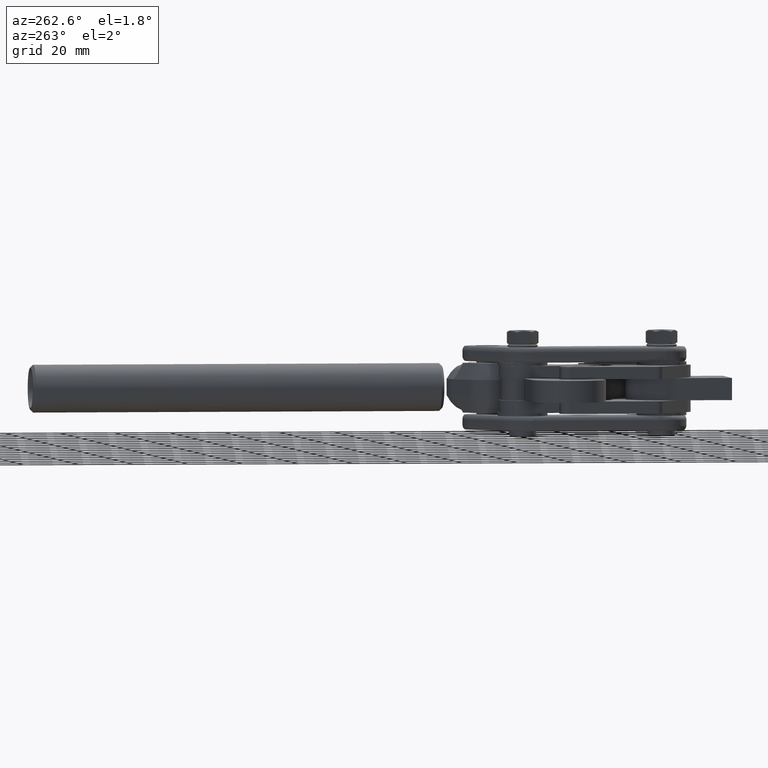
[diagram: clean part render]
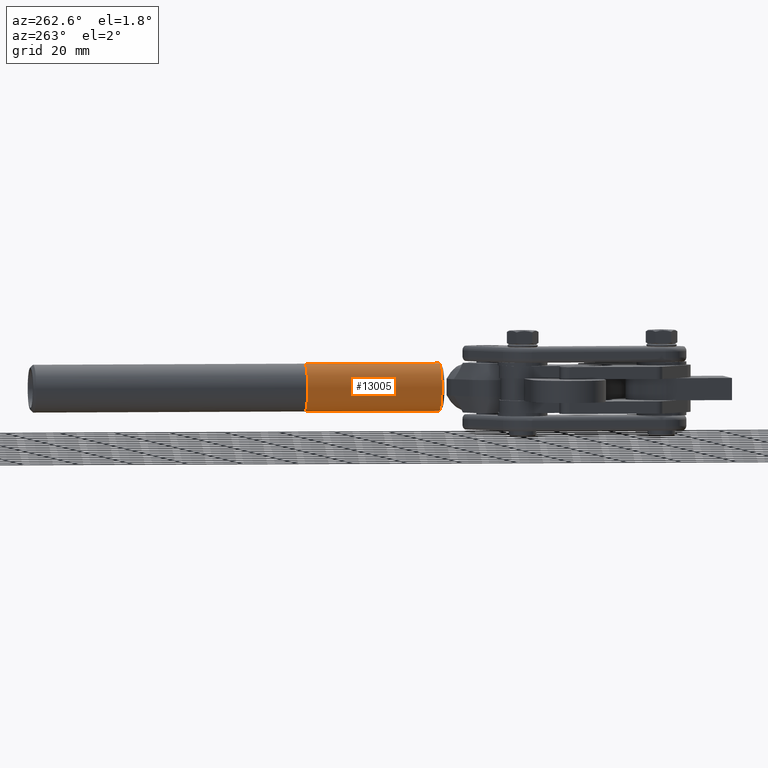
[diagram: same view with one face highlighted and labeled with its STEP entity id]
A machine part, auxiliary view. The second image highlights one B-rep face of the part: STEP entity #13005.
In plain terms, the highlighted cylindrical surface (edge-blend (fillet) strip) has radius 8.65 mm, axis along (-0, -1, -0).
Its self-contained STEP definition (entity closure, byte-faithful):
#1093 = EDGE_LOOP ( 'NONE', ( #1607, #4572, #3187, #6422 ) ) ;
#1117 = CIRCLE ( 'NONE', #12565, 8.649999999999998600 ) ;
#1427 = VERTEX_POINT ( 'NONE', #7712 ) ;
#1607 = ORIENTED_EDGE ( 'NONE', *, *, #3571, .F. ) ;
#1678 = LINE ( 'NONE', #7084, #6951 ) ;
#2352 = DIRECTION ( 'NONE',  ( -0.0000000000000000000, -1.000000000000000000, -0.0000000000000000000 ) ) ;
#3187 = ORIENTED_EDGE ( 'NONE', *, *, #9114, .T. ) ;
#3414 = CARTESIAN_POINT ( 'NONE',  ( 0.0000000000000000000, 150.0000000000000000, 0.0000000000000000000 ) ) ;
#3571 = EDGE_CURVE ( 'NONE', #5198, #6316, #1678, .T. ) ;
#3727 = CARTESIAN_POINT ( 'NONE',  ( 0.0000000000000000000, 49.99999999999998600, 0.0000000000000000000 ) ) ;
#4095 = DIRECTION ( 'NONE',  ( -0.0000000000000000000, 1.000000000000000000, -0.0000000000000000000 ) ) ;
#4442 = LINE ( 'NONE', #8702, #9760 ) ;
#4572 = ORIENTED_EDGE ( 'NONE', *, *, #5675, .F. ) ;
#4757 = CARTESIAN_POINT ( 'NONE',  ( 1.059319481262460400E-015, 49.99999999999998600, 8.649999999999998600 ) ) ;
#4789 = DIRECTION ( 'NONE',  ( 0.0000000000000000000, 0.0000000000000000000, 1.000000000000000000 ) ) ;
#5198 = VERTEX_POINT ( 'NONE', #4757 ) ;
#5328 = AXIS2_PLACEMENT_3D ( 'NONE', #3414, #7651, #12872 ) ;
#5462 = VERTEX_POINT ( 'NONE', #7321 ) ;
#5675 = EDGE_CURVE ( 'NONE', #5462, #5198, #1117, .T. ) ;
#6316 = VERTEX_POINT ( 'NONE', #11185 ) ;
#6422 = ORIENTED_EDGE ( 'NONE', *, *, #12153, .T. ) ;
#6951 = VECTOR ( 'NONE', #12397, 1000.000000000000000 ) ;
#7084 = CARTESIAN_POINT ( 'NONE',  ( 1.059319481262460400E-015, 150.0000000000000000, 8.649999999999998600 ) ) ;
#7321 = CARTESIAN_POINT ( 'NONE',  ( 0.0000000000000000000, 49.99999999999998600, -8.649999999999998600 ) ) ;
#7651 = DIRECTION ( 'NONE',  ( -0.0000000000000000000, -1.000000000000000000, -0.0000000000000000000 ) ) ;
#7712 = CARTESIAN_POINT ( 'NONE',  ( 0.0000000000000000000, 1.000000000000000900, -8.649999999999998600 ) ) ;
#8702 = CARTESIAN_POINT ( 'NONE',  ( 0.0000000000000000000, 150.0000000000000000, -8.649999999999998600 ) ) ;
#9114 = EDGE_CURVE ( 'NONE', #5462, #1427, #4442, .T. ) ;
#9213 = CIRCLE ( 'NONE', #13039, 8.649999999999998600 ) ;
#9760 = VECTOR ( 'NONE', #2352, 1000.000000000000000 ) ;
#10460 = CARTESIAN_POINT ( 'NONE',  ( 0.0000000000000000000, 1.000000000000000900, 0.0000000000000000000 ) ) ;
#10484 = CYLINDRICAL_SURFACE ( 'NONE', #5328, 8.649999999999998600 ) ;
#11151 = DIRECTION ( 'NONE',  ( 0.0000000000000000000, 1.000000000000000000, 0.0000000000000000000 ) ) ;
#11185 = CARTESIAN_POINT ( 'NONE',  ( 1.059319481262460400E-015, 1.000000000000000900, 8.649999999999998600 ) ) ;
#11508 = DIRECTION ( 'NONE',  ( 0.0000000000000000000, 0.0000000000000000000, 1.000000000000000000 ) ) ;
#12153 = EDGE_CURVE ( 'NONE', #1427, #6316, #9213, .T. ) ;
#12397 = DIRECTION ( 'NONE',  ( -0.0000000000000000000, -1.000000000000000000, -0.0000000000000000000 ) ) ;
#12565 = AXIS2_PLACEMENT_3D ( 'NONE', #3727, #11151, #4789 ) ;
#12872 = DIRECTION ( 'NONE',  ( 0.0000000000000000000, 0.0000000000000000000, -1.000000000000000000 ) ) ;
#13005 = ADVANCED_FACE ( 'NONE', ( #13604 ), #10484, .T. ) ;
#13039 = AXIS2_PLACEMENT_3D ( 'NONE', #10460, #4095, #11508 ) ;
#13604 = FACE_OUTER_BOUND ( 'NONE', #1093, .T. ) ;